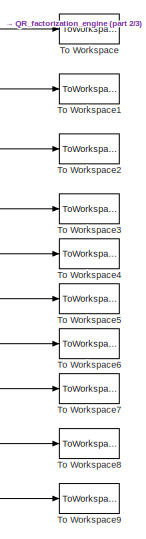
[diagram: root canvas - part 1/3, top right region]
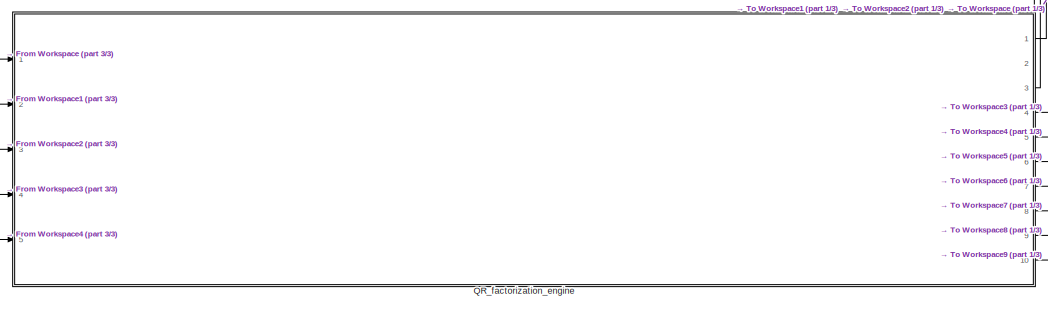
[diagram: root canvas - part 2/3, bottom center region]
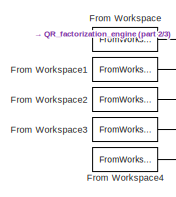
[diagram: root canvas - part 3/3, bottom left region]
MODEL slx_af0b74a20308
KIND model
CONFIG AbsTol = auto
CONFIG EnableMultiTasking = off
CONFIG FixedStep = auto
CONFIG MaxStep = auto
CONFIG MinStep = auto
CONFIG RelTol = 1e-3
CONFIG SampleTimeConstraint = Unconstrained
CONFIG Solver = VariableStepAuto
CONFIG SolverName = VariableStepAuto
CONFIG StartTime = 0.0
CONFIG StopTime = simulation_stop_time
BLOCK [FromWorkspace] From Workspace
  Interpolate = off
  OutDataTypeStr = double
  OutputAfterFinalValue = Holding final value
  SampleTime = sample_time
  VariableName = AtI(1)
  ZeroCross = on
BLOCK [FromWorkspace] From Workspace1
  Interpolate = off
  OutDataTypeStr = double
  OutputAfterFinalValue = Holding final value
  SampleTime = sample_time
  VariableName = AtI(2)
  ZeroCross = on
BLOCK [FromWorkspace] From Workspace2
  Interpolate = off
  OutDataTypeStr = double
  OutputAfterFinalValue = Holding final value
  SampleTime = sample_time
  VariableName = AtI(3)
  ZeroCross = on
BLOCK [FromWorkspace] From Workspace3
  Interpolate = off
  OutDataTypeStr = double
  OutputAfterFinalValue = Holding final value
  SampleTime = sample_time
  VariableName = AtI(4)
  ZeroCross = on
BLOCK [FromWorkspace] From Workspace4
  Interpolate = off
  OutDataTypeStr = double
  OutputAfterFinalValue = Holding final value
  SampleTime = sample_time
  VariableName = AtI(5)
  ZeroCross = on
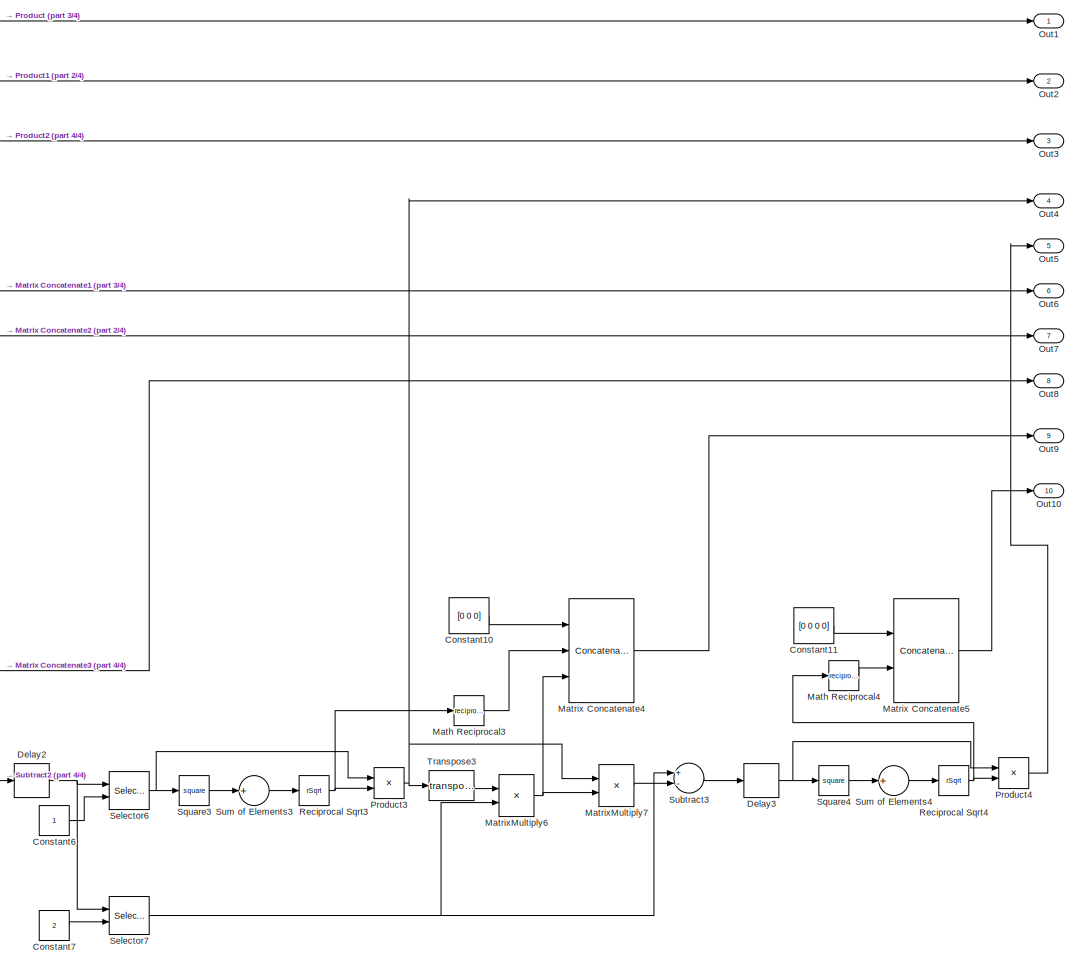
[diagram: QR_factorization_engine - part 1/4, right side, full height]
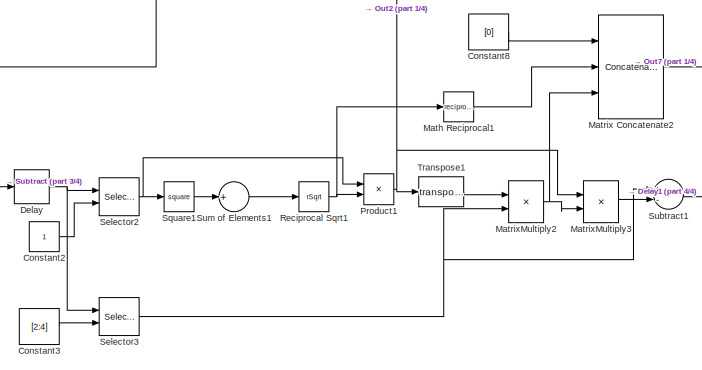
[diagram: QR_factorization_engine - part 2/4, bottom center region]
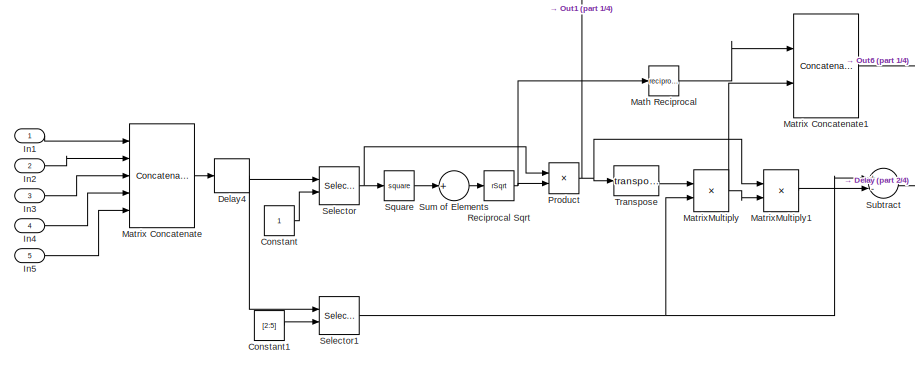
[diagram: QR_factorization_engine - part 3/4, bottom left region]
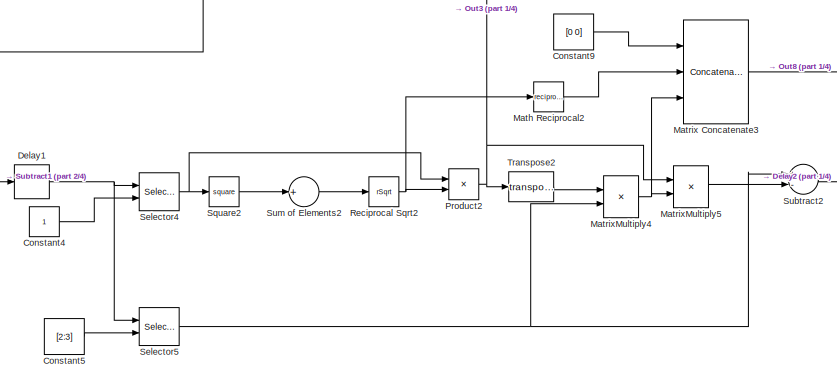
[diagram: QR_factorization_engine - part 4/4, bottom center region]
BLOCK [SubSystem] QR_factorization_engine
  Ports = [5, 10]
  RequestExecContextInheritance = off
BLOCK [Constant] QR_factorization_engine/Constant
  SampleTime = sample_time
  VectorParams1D = off
BLOCK [Constant] QR_factorization_engine/Constant1
  SampleTime = sample_time
  Value = [2:5]
  VectorParams1D = off
BLOCK [Constant] QR_factorization_engine/Constant10
  SampleTime = sample_time
  Value = [0 0 0]
  VectorParams1D = off
BLOCK [Constant] QR_factorization_engine/Constant11
  SampleTime = sample_time
  Value = [0 0 0 0]
  VectorParams1D = off
BLOCK [Constant] QR_factorization_engine/Constant2
  SampleTime = sample_time
  VectorParams1D = off
BLOCK [Constant] QR_factorization_engine/Constant3
  SampleTime = sample_time
  Value = [2:4]
  VectorParams1D = off
BLOCK [Constant] QR_factorization_engine/Constant4
  SampleTime = sample_time
  VectorParams1D = off
BLOCK [Constant] QR_factorization_engine/Constant5
  SampleTime = sample_time
  Value = [2:3]
  VectorParams1D = off
BLOCK [Constant] QR_factorization_engine/Constant6
  SampleTime = sample_time
  VectorParams1D = off
BLOCK [Constant] QR_factorization_engine/Constant7
  SampleTime = sample_time
  Value = 2
  VectorParams1D = off
BLOCK [Constant] QR_factorization_engine/Constant8
  SampleTime = sample_time
  Value = [0]
  VectorParams1D = off
BLOCK [Constant] QR_factorization_engine/Constant9
  SampleTime = sample_time
  Value = [0 0]
  VectorParams1D = off
BLOCK [Delay] QR_factorization_engine/Delay
  DelayLength = 4
  InitialCondition = 0
  InputPortMap = u0
  Ports = [1, 1]
BLOCK [Delay] QR_factorization_engine/Delay1
  DelayLength = 4
  InitialCondition = 0
  InputPortMap = u0
  Ports = [1, 1]
BLOCK [Delay] QR_factorization_engine/Delay2
  DelayLength = 4
  InitialCondition = 0
  InputPortMap = u0
  Ports = [1, 1]
BLOCK [Delay] QR_factorization_engine/Delay3
  DelayLength = 4
  InitialCondition = 0
  InputPortMap = u0
  Ports = [1, 1]
BLOCK [Delay] QR_factorization_engine/Delay4
  DelayLength = 4
  InitialCondition = 0
  InputPortMap = u0
  Ports = [1, 1]
BLOCK [Inport] QR_factorization_engine/In1
  IconDisplay = Port number
BLOCK [Inport] QR_factorization_engine/In2
  IconDisplay = Port number
  Port = 2
BLOCK [Inport] QR_factorization_engine/In3
  IconDisplay = Port number
  Port = 3
BLOCK [Inport] QR_factorization_engine/In4
  IconDisplay = Port number
  Port = 4
BLOCK [Inport] QR_factorization_engine/In5
  IconDisplay = Port number
  Port = 5
BLOCK [Math] QR_factorization_engine/Math Reciprocal
  Operator = reciprocal
  Ports = [1, 1]
BLOCK [Math] QR_factorization_engine/Math Reciprocal1
  Operator = reciprocal
  Ports = [1, 1]
BLOCK [Math] QR_factorization_engine/Math Reciprocal2
  Operator = reciprocal
  Ports = [1, 1]
BLOCK [Math] QR_factorization_engine/Math Reciprocal3
  Operator = reciprocal
  Ports = [1, 1]
BLOCK [Math] QR_factorization_engine/Math Reciprocal4
  Operator = reciprocal
  Ports = [1, 1]
BLOCK [Concatenate] QR_factorization_engine/Matrix Concatenate
  ConcatenateDimension = 2
  Mode = Multidimensional array
  NumInputs = 5
  Ports = [5, 1]
BLOCK [Concatenate] QR_factorization_engine/Matrix Concatenate1
  ConcatenateDimension = 2
  Mode = Multidimensional array
  Ports = [2, 1]
BLOCK [Concatenate] QR_factorization_engine/Matrix Concatenate2
  ConcatenateDimension = 2
  Mode = Multidimensional array
  NumInputs = 3
  Ports = [3, 1]
BLOCK [Concatenate] QR_factorization_engine/Matrix Concatenate3
  ConcatenateDimension = 2
  Mode = Multidimensional array
  NumInputs = 3
  Ports = [3, 1]
BLOCK [Concatenate] QR_factorization_engine/Matrix Concatenate4
  ConcatenateDimension = 2
  Mode = Multidimensional array
  NumInputs = 3
  Ports = [3, 1]
BLOCK [Concatenate] QR_factorization_engine/Matrix Concatenate5
  ConcatenateDimension = 2
  Mode = Multidimensional array
  Ports = [2, 1]
BLOCK [Product] QR_factorization_engine/MatrixMultiply
  InputSameDT = off
  Multiplication = Matrix(*)
  OutDataTypeStr = Inherit: Inherit via internal rule
  Ports = [2, 1]
  RndMeth = Floor
  SaturateOnIntegerOverflow = off
BLOCK [Product] QR_factorization_engine/MatrixMultiply1
  InputSameDT = off
  Multiplication = Matrix(*)
  OutDataTypeStr = Inherit: Inherit via internal rule
  Ports = [2, 1]
  RndMeth = Floor
  SaturateOnIntegerOverflow = off
BLOCK [Product] QR_factorization_engine/MatrixMultiply2
  InputSameDT = off
  Multiplication = Matrix(*)
  OutDataTypeStr = Inherit: Inherit via internal rule
  Ports = [2, 1]
  RndMeth = Floor
  SaturateOnIntegerOverflow = off
BLOCK [Product] QR_factorization_engine/MatrixMultiply3
  InputSameDT = off
  Multiplication = Matrix(*)
  OutDataTypeStr = Inherit: Inherit via internal rule
  Ports = [2, 1]
  RndMeth = Floor
  SaturateOnIntegerOverflow = off
BLOCK [Product] QR_factorization_engine/MatrixMultiply4
  InputSameDT = off
  Multiplication = Matrix(*)
  OutDataTypeStr = Inherit: Inherit via internal rule
  Ports = [2, 1]
  RndMeth = Floor
  SaturateOnIntegerOverflow = off
BLOCK [Product] QR_factorization_engine/MatrixMultiply5
  InputSameDT = off
  Multiplication = Matrix(*)
  OutDataTypeStr = Inherit: Inherit via internal rule
  Ports = [2, 1]
  RndMeth = Floor
  SaturateOnIntegerOverflow = off
BLOCK [Product] QR_factorization_engine/MatrixMultiply6
  InputSameDT = off
  Multiplication = Matrix(*)
  OutDataTypeStr = Inherit: Inherit via internal rule
  Ports = [2, 1]
  RndMeth = Floor
  SaturateOnIntegerOverflow = off
BLOCK [Product] QR_factorization_engine/MatrixMultiply7
  InputSameDT = off
  Multiplication = Matrix(*)
  OutDataTypeStr = Inherit: Inherit via internal rule
  Ports = [2, 1]
  RndMeth = Floor
  SaturateOnIntegerOverflow = off
BLOCK [Outport] QR_factorization_engine/Out1
  IconDisplay = Port number
BLOCK [Outport] QR_factorization_engine/Out10
  IconDisplay = Port number
  Port = 10
BLOCK [Outport] QR_factorization_engine/Out2
  IconDisplay = Port number
  Port = 2
BLOCK [Outport] QR_factorization_engine/Out3
  IconDisplay = Port number
  Port = 3
BLOCK [Outport] QR_factorization_engine/Out4
  IconDisplay = Port number
  Port = 4
BLOCK [Outport] QR_factorization_engine/Out5
  IconDisplay = Port number
  Port = 5
BLOCK [Outport] QR_factorization_engine/Out6
  IconDisplay = Port number
  Port = 6
BLOCK [Outport] QR_factorization_engine/Out7
  IconDisplay = Port number
  Port = 7
BLOCK [Outport] QR_factorization_engine/Out8
  IconDisplay = Port number
  Port = 8
BLOCK [Outport] QR_factorization_engine/Out9
  IconDisplay = Port number
  Port = 9
BLOCK [Product] QR_factorization_engine/Product
  InputSameDT = off
  OutDataTypeStr = Inherit: Inherit via internal rule
  Ports = [2, 1]
  RndMeth = Floor
  SaturateOnIntegerOverflow = off
BLOCK [Product] QR_factorization_engine/Product1
  InputSameDT = off
  OutDataTypeStr = Inherit: Inherit via internal rule
  Ports = [2, 1]
  RndMeth = Floor
  SaturateOnIntegerOverflow = off
BLOCK [Product] QR_factorization_engine/Product2
  InputSameDT = off
  OutDataTypeStr = Inherit: Inherit via internal rule
  Ports = [2, 1]
  RndMeth = Floor
  SaturateOnIntegerOverflow = off
BLOCK [Product] QR_factorization_engine/Product3
  InputSameDT = off
  OutDataTypeStr = Inherit: Inherit via internal rule
  Ports = [2, 1]
  RndMeth = Floor
  SaturateOnIntegerOverflow = off
BLOCK [Product] QR_factorization_engine/Product4
  InputSameDT = off
  OutDataTypeStr = Inherit: Inherit via internal rule
  Ports = [2, 1]
  RndMeth = Floor
  SaturateOnIntegerOverflow = off
BLOCK [Sqrt] QR_factorization_engine/Reciprocal Sqrt
  IntermediateResultsDataTypeStr = double
  Operator = rSqrt
BLOCK [Sqrt] QR_factorization_engine/Reciprocal Sqrt1
  IntermediateResultsDataTypeStr = double
  Operator = rSqrt
BLOCK [Sqrt] QR_factorization_engine/Reciprocal Sqrt2
  IntermediateResultsDataTypeStr = double
  Operator = rSqrt
BLOCK [Sqrt] QR_factorization_engine/Reciprocal Sqrt3
  IntermediateResultsDataTypeStr = double
  Operator = rSqrt
BLOCK [Sqrt] QR_factorization_engine/Reciprocal Sqrt4
  IntermediateResultsDataTypeStr = double
  Operator = rSqrt
BLOCK [Selector] QR_factorization_engine/Selector
  IndexOptions = Select all,Index vector (port)
  Indices = [1 3],1
  InputPortWidth = 3
  NumberOfDimensions = 2
  OutputSizes = 1,1
  Ports = [2, 1]
BLOCK [Selector] QR_factorization_engine/Selector1
  IndexOptions = Select all,Index vector (port)
  Indices = [1 3],1
  InputPortWidth = 3
  NumberOfDimensions = 2
  OutputSizes = 1,1
  Ports = [2, 1]
BLOCK [Selector] QR_factorization_engine/Selector2
  IndexOptions = Select all,Index vector (port)
  Indices = [1 3],1
  InputPortWidth = 3
  NumberOfDimensions = 2
  OutputSizes = 1,1
  Ports = [2, 1]
BLOCK [Selector] QR_factorization_engine/Selector3
  IndexOptions = Select all,Index vector (port)
  Indices = [1 3],1
  InputPortWidth = 3
  NumberOfDimensions = 2
  OutputSizes = 1,1
  Ports = [2, 1]
BLOCK [Selector] QR_factorization_engine/Selector4
  IndexOptions = Select all,Index vector (port)
  Indices = [1 3],1
  InputPortWidth = 3
  NumberOfDimensions = 2
  OutputSizes = 1,1
  Ports = [2, 1]
BLOCK [Selector] QR_factorization_engine/Selector5
  IndexOptions = Select all,Index vector (port)
  Indices = [1 3],1
  InputPortWidth = 3
  NumberOfDimensions = 2
  OutputSizes = 1,1
  Ports = [2, 1]
BLOCK [Selector] QR_factorization_engine/Selector6
  IndexOptions = Select all,Index vector (port)
  Indices = [1 3],1
  InputPortWidth = 3
  NumberOfDimensions = 2
  OutputSizes = 1,1
  Ports = [2, 1]
BLOCK [Selector] QR_factorization_engine/Selector7
  IndexOptions = Select all,Index vector (port)
  Indices = [1 3],1
  InputPortWidth = 3
  NumberOfDimensions = 2
  OutputSizes = 1,1
  Ports = [2, 1]
BLOCK [Math] QR_factorization_engine/Square
  Operator = square
  Ports = [1, 1]
  RndMeth = Zero
BLOCK [Math] QR_factorization_engine/Square1
  Operator = square
  Ports = [1, 1]
  RndMeth = Zero
BLOCK [Math] QR_factorization_engine/Square2
  Operator = square
  Ports = [1, 1]
  RndMeth = Zero
BLOCK [Math] QR_factorization_engine/Square3
  Operator = square
  Ports = [1, 1]
  RndMeth = Zero
BLOCK [Math] QR_factorization_engine/Square4
  Operator = square
  Ports = [1, 1]
  RndMeth = Zero
BLOCK [Sum] QR_factorization_engine/Subtract
  InputSameDT = off
  Inputs = +-
  OutDataTypeStr = Inherit: Inherit via internal rule
  Ports = [2, 1]
  SaturateOnIntegerOverflow = off
BLOCK [Sum] QR_factorization_engine/Subtract1
  InputSameDT = off
  Inputs = +-
  OutDataTypeStr = Inherit: Inherit via internal rule
  Ports = [2, 1]
  SaturateOnIntegerOverflow = off
BLOCK [Sum] QR_factorization_engine/Subtract2
  InputSameDT = off
  Inputs = +-
  OutDataTypeStr = Inherit: Inherit via internal rule
  Ports = [2, 1]
  SaturateOnIntegerOverflow = off
BLOCK [Sum] QR_factorization_engine/Subtract3
  InputSameDT = off
  Inputs = +-
  OutDataTypeStr = Inherit: Inherit via internal rule
  Ports = [2, 1]
  SaturateOnIntegerOverflow = off
BLOCK [Sum] QR_factorization_engine/Sum of Elements
  InputSameDT = off
  Inputs = +
  OutDataTypeStr = Inherit: Inherit via internal rule
  Ports = [1, 1]
  SaturateOnIntegerOverflow = off
BLOCK [Sum] QR_factorization_engine/Sum of Elements1
  InputSameDT = off
  Inputs = +
  OutDataTypeStr = Inherit: Inherit via internal rule
  Ports = [1, 1]
  SaturateOnIntegerOverflow = off
BLOCK [Sum] QR_factorization_engine/Sum of Elements2
  InputSameDT = off
  Inputs = +
  OutDataTypeStr = Inherit: Inherit via internal rule
  Ports = [1, 1]
  SaturateOnIntegerOverflow = off
BLOCK [Sum] QR_factorization_engine/Sum of Elements3
  InputSameDT = off
  Inputs = +
  OutDataTypeStr = Inherit: Inherit via internal rule
  Ports = [1, 1]
  SaturateOnIntegerOverflow = off
BLOCK [Sum] QR_factorization_engine/Sum of Elements4
  InputSameDT = off
  Inputs = +
  OutDataTypeStr = Inherit: Inherit via internal rule
  Ports = [1, 1]
  SaturateOnIntegerOverflow = off
BLOCK [Math] QR_factorization_engine/Transpose
  Operator = transpose
  Ports = [1, 1]
  RndMeth = Zero
BLOCK [Math] QR_factorization_engine/Transpose1
  Operator = transpose
  Ports = [1, 1]
  RndMeth = Zero
BLOCK [Math] QR_factorization_engine/Transpose2
  Operator = transpose
  Ports = [1, 1]
  RndMeth = Zero
BLOCK [Math] QR_factorization_engine/Transpose3
  Operator = transpose
  Ports = [1, 1]
  RndMeth = Zero
BLOCK [ToWorkspace] To Workspace
  FixptAsFi = on
  MaxDataPoints = inf
  Ports = [1]
  SampleTime = -1
  SaveFormat = Structure With Time
  VariableName = q1
BLOCK [ToWorkspace] To Workspace1
  FixptAsFi = on
  MaxDataPoints = inf
  Ports = [1]
  SampleTime = -1
  SaveFormat = Structure With Time
  VariableName = q2
BLOCK [ToWorkspace] To Workspace2
  FixptAsFi = on
  MaxDataPoints = inf
  Ports = [1]
  SampleTime = -1
  SaveFormat = Structure With Time
  VariableName = q3
BLOCK [ToWorkspace] To Workspace3
  FixptAsFi = on
  MaxDataPoints = inf
  Ports = [1]
  SampleTime = -1
  SaveFormat = Structure With Time
  VariableName = q4
BLOCK [ToWorkspace] To Workspace4
  FixptAsFi = on
  MaxDataPoints = inf
  Ports = [1]
  SampleTime = -1
  SaveFormat = Structure With Time
  VariableName = q5
BLOCK [ToWorkspace] To Workspace5
  FixptAsFi = on
  MaxDataPoints = inf
  Ports = [1]
  SampleTime = -1
  SaveFormat = Structure With Time
  VariableName = r1
BLOCK [ToWorkspace] To Workspace6
  FixptAsFi = on
  MaxDataPoints = inf
  Ports = [1]
  SampleTime = -1
  SaveFormat = Structure With Time
  VariableName = r2
BLOCK [ToWorkspace] To Workspace7
  FixptAsFi = on
  MaxDataPoints = inf
  Ports = [1]
  SampleTime = -1
  SaveFormat = Structure With Time
  VariableName = r3
BLOCK [ToWorkspace] To Workspace8
  FixptAsFi = on
  MaxDataPoints = inf
  Ports = [1]
  SampleTime = -1
  SaveFormat = Structure With Time
  VariableName = r4
BLOCK [ToWorkspace] To Workspace9
  FixptAsFi = on
  MaxDataPoints = inf
  Ports = [1]
  SampleTime = -1
  SaveFormat = Structure With Time
  VariableName = r5
LINE From Workspace1:1 -> QR_factorization_engine:2
LINE From Workspace2:1 -> QR_factorization_engine:3
LINE From Workspace3:1 -> QR_factorization_engine:4
LINE From Workspace4:1 -> QR_factorization_engine:5
LINE From Workspace:1 -> QR_factorization_engine:1
LINE QR_factorization_engine/Constant10:1 -> QR_factorization_engine/Matrix Concatenate4:1
LINE QR_factorization_engine/Constant11:1 -> QR_factorization_engine/Matrix Concatenate5:1
LINE QR_factorization_engine/Constant1:1 -> QR_factorization_engine/Selector1:2
LINE QR_factorization_engine/Constant2:1 -> QR_factorization_engine/Selector2:2
LINE QR_factorization_engine/Constant3:1 -> QR_factorization_engine/Selector3:2
LINE QR_factorization_engine/Constant4:1 -> QR_factorization_engine/Selector4:2
LINE QR_factorization_engine/Constant5:1 -> QR_factorization_engine/Selector5:2
LINE QR_factorization_engine/Constant6:1 -> QR_factorization_engine/Selector6:2
LINE QR_factorization_engine/Constant7:1 -> QR_factorization_engine/Selector7:2
LINE QR_factorization_engine/Constant8:1 -> QR_factorization_engine/Matrix Concatenate2:1
LINE QR_factorization_engine/Constant9:1 -> QR_factorization_engine/Matrix Concatenate3:1
LINE QR_factorization_engine/Constant:1 -> QR_factorization_engine/Selector:2
NET QR_factorization_engine/Delay1:1 -> QR_factorization_engine/Selector4:1, QR_factorization_engine/Selector5:1
NET QR_factorization_engine/Delay2:1 -> QR_factorization_engine/Selector6:1, QR_factorization_engine/Selector7:1
NET QR_factorization_engine/Delay3:1 -> QR_factorization_engine/Product4:1, QR_factorization_engine/Square4:1
NET QR_factorization_engine/Delay4:1 -> QR_factorization_engine/Selector1:1, QR_factorization_engine/Selector:1
NET QR_factorization_engine/Delay:1 -> QR_factorization_engine/Selector2:1, QR_factorization_engine/Selector3:1
LINE QR_factorization_engine/In1:1 -> QR_factorization_engine/Matrix Concatenate:1
LINE QR_factorization_engine/In2:1 -> QR_factorization_engine/Matrix Concatenate:2
LINE QR_factorization_engine/In3:1 -> QR_factorization_engine/Matrix Concatenate:3
LINE QR_factorization_engine/In4:1 -> QR_factorization_engine/Matrix Concatenate:4
LINE QR_factorization_engine/In5:1 -> QR_factorization_engine/Matrix Concatenate:5
LINE QR_factorization_engine/Math Reciprocal1:1 -> QR_factorization_engine/Matrix Concatenate2:2
LINE QR_factorization_engine/Math Reciprocal2:1 -> QR_factorization_engine/Matrix Concatenate3:2
LINE QR_factorization_engine/Math Reciprocal3:1 -> QR_factorization_engine/Matrix Concatenate4:2
LINE QR_factorization_engine/Math Reciprocal4:1 -> QR_factorization_engine/Matrix Concatenate5:2
LINE QR_factorization_engine/Math Reciprocal:1 -> QR_factorization_engine/Matrix Concatenate1:1
LINE QR_factorization_engine/Matrix Concatenate1:1 -> QR_factorization_engine/Out6:1
LINE QR_factorization_engine/Matrix Concatenate2:1 -> QR_factorization_engine/Out7:1
LINE QR_factorization_engine/Matrix Concatenate3:1 -> QR_factorization_engine/Out8:1
LINE QR_factorization_engine/Matrix Concatenate4:1 -> QR_factorization_engine/Out9:1
LINE QR_factorization_engine/Matrix Concatenate5:1 -> QR_factorization_engine/Out10:1
LINE QR_factorization_engine/Matrix Concatenate:1 -> QR_factorization_engine/Delay4:1
LINE QR_factorization_engine/MatrixMultiply1:1 -> QR_factorization_engine/Subtract:2
NET QR_factorization_engine/MatrixMultiply2:1 -> QR_factorization_engine/Matrix Concatenate2:3, QR_factorization_engine/MatrixMultiply3:2
LINE QR_factorization_engine/MatrixMultiply3:1 -> QR_factorization_engine/Subtract1:2
NET QR_factorization_engine/MatrixMultiply4:1 -> QR_factorization_engine/Matrix Concatenate3:3, QR_factorization_engine/MatrixMultiply5:2
LINE QR_factorization_engine/MatrixMultiply5:1 -> QR_factorization_engine/Subtract2:2
NET QR_factorization_engine/MatrixMultiply6:1 -> QR_factorization_engine/Matrix Concatenate4:3, QR_factorization_engine/MatrixMultiply7:2
LINE QR_factorization_engine/MatrixMultiply7:1 -> QR_factorization_engine/Subtract3:2
NET QR_factorization_engine/MatrixMultiply:1 -> QR_factorization_engine/Matrix Concatenate1:2, QR_factorization_engine/MatrixMultiply1:2
NET QR_factorization_engine/Product1:1 -> QR_factorization_engine/MatrixMultiply3:1, QR_factorization_engine/Out2:1, QR_factorization_engine/Transpose1:1
NET QR_factorization_engine/Product2:1 -> QR_factorization_engine/MatrixMultiply5:1, QR_factorization_engine/Out3:1, QR_factorization_engine/Transpose2:1
NET QR_factorization_engine/Product3:1 -> QR_factorization_engine/MatrixMultiply7:1, QR_factorization_engine/Out4:1, QR_factorization_engine/Transpose3:1
LINE QR_factorization_engine/Product4:1 -> QR_factorization_engine/Out5:1
NET QR_factorization_engine/Product:1 -> QR_factorization_engine/MatrixMultiply1:1, QR_factorization_engine/Out1:1, QR_factorization_engine/Transpose:1
NET QR_factorization_engine/Reciprocal Sqrt1:1 -> QR_factorization_engine/Math Reciprocal1:1, QR_factorization_engine/Product1:2
NET QR_factorization_engine/Reciprocal Sqrt2:1 -> QR_factorization_engine/Math Reciprocal2:1, QR_factorization_engine/Product2:2
NET QR_factorization_engine/Reciprocal Sqrt3:1 -> QR_factorization_engine/Math Reciprocal3:1, QR_factorization_engine/Product3:2
NET QR_factorization_engine/Reciprocal Sqrt4:1 -> QR_factorization_engine/Math Reciprocal4:1, QR_factorization_engine/Product4:2
NET QR_factorization_engine/Reciprocal Sqrt:1 -> QR_factorization_engine/Math Reciprocal:1, QR_factorization_engine/Product:2
NET QR_factorization_engine/Selector1:1 -> QR_factorization_engine/MatrixMultiply:2, QR_factorization_engine/Subtract:1
NET QR_factorization_engine/Selector2:1 -> QR_factorization_engine/Product1:1, QR_factorization_engine/Square1:1
NET QR_factorization_engine/Selector3:1 -> QR_factorization_engine/MatrixMultiply2:2, QR_factorization_engine/Subtract1:1
NET QR_factorization_engine/Selector4:1 -> QR_factorization_engine/Product2:1, QR_factorization_engine/Square2:1
NET QR_factorization_engine/Selector5:1 -> QR_factorization_engine/MatrixMultiply4:2, QR_factorization_engine/Subtract2:1
NET QR_factorization_engine/Selector6:1 -> QR_factorization_engine/Product3:1, QR_factorization_engine/Square3:1
NET QR_factorization_engine/Selector7:1 -> QR_factorization_engine/MatrixMultiply6:2, QR_factorization_engine/Subtract3:1
NET QR_factorization_engine/Selector:1 -> QR_factorization_engine/Product:1, QR_factorization_engine/Square:1
LINE QR_factorization_engine/Square1:1 -> QR_factorization_engine/Sum of Elements1:1
LINE QR_factorization_engine/Square2:1 -> QR_factorization_engine/Sum of Elements2:1
LINE QR_factorization_engine/Square3:1 -> QR_factorization_engine/Sum of Elements3:1
LINE QR_factorization_engine/Square4:1 -> QR_factorization_engine/Sum of Elements4:1
LINE QR_factorization_engine/Square:1 -> QR_factorization_engine/Sum of Elements:1
LINE QR_factorization_engine/Subtract1:1 -> QR_factorization_engine/Delay1:1
LINE QR_factorization_engine/Subtract2:1 -> QR_factorization_engine/Delay2:1
LINE QR_factorization_engine/Subtract3:1 -> QR_factorization_engine/Delay3:1
LINE QR_factorization_engine/Subtract:1 -> QR_factorization_engine/Delay:1
LINE QR_factorization_engine/Sum of Elements1:1 -> QR_factorization_engine/Reciprocal Sqrt1:1
LINE QR_factorization_engine/Sum of Elements2:1 -> QR_factorization_engine/Reciprocal Sqrt2:1
LINE QR_factorization_engine/Sum of Elements3:1 -> QR_factorization_engine/Reciprocal Sqrt3:1
LINE QR_factorization_engine/Sum of Elements4:1 -> QR_factorization_engine/Reciprocal Sqrt4:1
LINE QR_factorization_engine/Sum of Elements:1 -> QR_factorization_engine/Reciprocal Sqrt:1
LINE QR_factorization_engine/Transpose1:1 -> QR_factorization_engine/MatrixMultiply2:1
LINE QR_factorization_engine/Transpose2:1 -> QR_factorization_engine/MatrixMultiply4:1
LINE QR_factorization_engine/Transpose3:1 -> QR_factorization_engine/MatrixMultiply6:1
LINE QR_factorization_engine/Transpose:1 -> QR_factorization_engine/MatrixMultiply:1
LINE QR_factorization_engine:1 -> To Workspace:1
LINE QR_factorization_engine:10 -> To Workspace9:1
LINE QR_factorization_engine:2 -> To Workspace1:1
LINE QR_factorization_engine:3 -> To Workspace2:1
LINE QR_factorization_engine:4 -> To Workspace3:1
LINE QR_factorization_engine:5 -> To Workspace4:1
LINE QR_factorization_engine:6 -> To Workspace5:1
LINE QR_factorization_engine:7 -> To Workspace6:1
LINE QR_factorization_engine:8 -> To Workspace7:1
LINE QR_factorization_engine:9 -> To Workspace8:1
note: NET lines group one-source signal fan-out (src -> all destinations, sorted); 1:1 wires keep LINE
